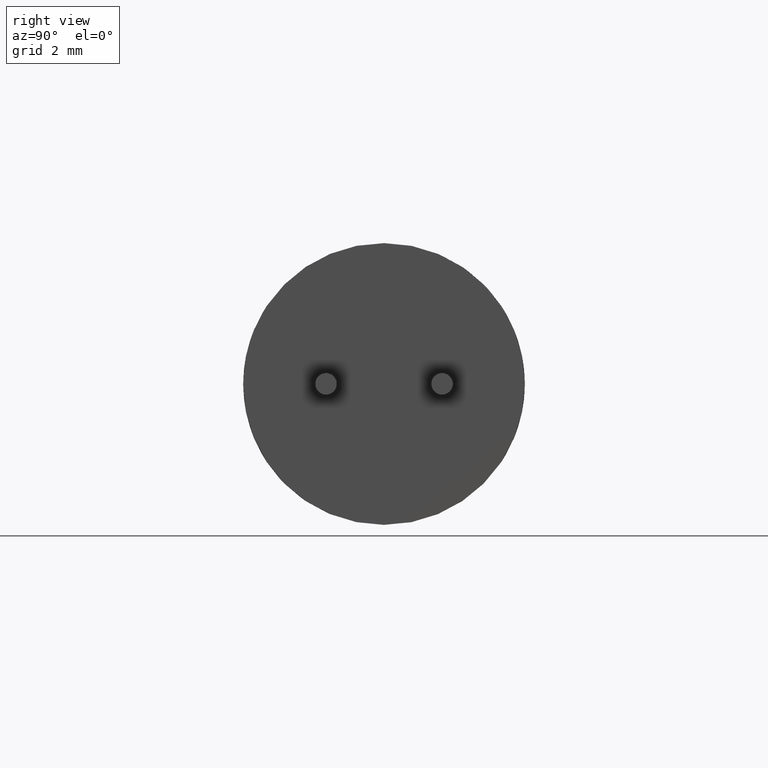
[diagram: clean part render]
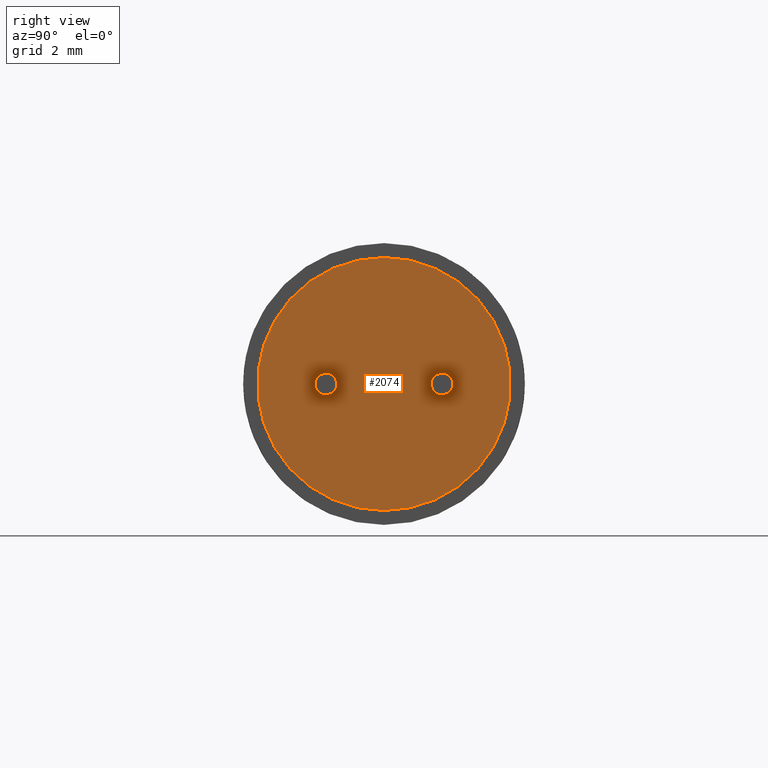
[diagram: same view with one face highlighted and labeled with its STEP entity id]
A machine part, right view. The second image highlights one B-rep face of the part: STEP entity #2074.
In plain terms, the highlighted planar face has unit normal (1, 0, 0).
Its self-contained STEP definition (entity closure, byte-faithful):
#63 = DIRECTION ( 'NONE',  ( 1.000000000000000000, 0.0000000000000000000, 0.0000000000000000000 ) ) ;
#139 = CARTESIAN_POINT ( 'NONE',  ( 13.00000000000000200, 0.0000000000000000000, 0.0000000000000000000 ) ) ;
#160 = CARTESIAN_POINT ( 'NONE',  ( 13.00000000000000200, 1.750000000000000000, 0.3250000000000000100 ) ) ;
#202 = EDGE_CURVE ( 'NONE', #429, #1292, #1528, .T. ) ;
#309 = CIRCLE ( 'NONE', #2842, 0.3250000000000000100 ) ;
#348 = CIRCLE ( 'NONE', #1668, 3.816924999999999900 ) ;
#388 = CARTESIAN_POINT ( 'NONE',  ( 13.00000000000000200, -1.750000000000000000, 0.0000000000000000000 ) ) ;
#429 = VERTEX_POINT ( 'NONE', #2627 ) ;
#486 = AXIS2_PLACEMENT_3D ( 'NONE', #2184, #2507, #2765 ) ;
#488 = FACE_OUTER_BOUND ( 'NONE', #1837, .T. ) ;
#571 = CIRCLE ( 'NONE', #755, 0.3250000000000000100 ) ;
#580 = CARTESIAN_POINT ( 'NONE',  ( 13.00000000000000200, -1.750000000000000000, 0.3250000000000000100 ) ) ;
#602 = ORIENTED_EDGE ( 'NONE', *, *, #1972, .T. ) ;
#609 = CARTESIAN_POINT ( 'NONE',  ( 13.00000000000000200, 1.750000000000000000, 0.0000000000000000000 ) ) ;
#755 = AXIS2_PLACEMENT_3D ( 'NONE', #388, #941, #2547 ) ;
#881 = ORIENTED_EDGE ( 'NONE', *, *, #202, .F. ) ;
#941 = DIRECTION ( 'NONE',  ( 1.000000000000000000, 0.0000000000000000000, 0.0000000000000000000 ) ) ;
#979 = PLANE ( 'NONE',  #1207 ) ;
#1050 = CARTESIAN_POINT ( 'NONE',  ( 13.00000000000000200, 1.750000000000000000, -0.3250000000000000100 ) ) ;
#1073 = VERTEX_POINT ( 'NONE', #3367 ) ;
#1172 = CIRCLE ( 'NONE', #2878, 0.3250000000000000100 ) ;
#1181 = CARTESIAN_POINT ( 'NONE',  ( 13.00000000000000200, 0.0000000000000000000, 3.816924999999999900 ) ) ;
#1188 = DIRECTION ( 'NONE',  ( 0.0000000000000000000, 0.0000000000000000000, -1.000000000000000000 ) ) ;
#1201 = DIRECTION ( 'NONE',  ( 0.0000000000000000000, 0.0000000000000000000, -1.000000000000000000 ) ) ;
#1207 = AXIS2_PLACEMENT_3D ( 'NONE', #139, #3150, #1793 ) ;
#1230 = DIRECTION ( 'NONE',  ( 1.000000000000000000, 0.0000000000000000000, 0.0000000000000000000 ) ) ;
#1292 = VERTEX_POINT ( 'NONE', #580 ) ;
#1330 = EDGE_CURVE ( 'NONE', #1745, #3356, #309, .T. ) ;
#1392 = DIRECTION ( 'NONE',  ( 0.0000000000000000000, 0.0000000000000000000, -1.000000000000000000 ) ) ;
#1510 = CIRCLE ( 'NONE', #2991, 3.816924999999999900 ) ;
#1528 = CIRCLE ( 'NONE', #486, 0.3250000000000000100 ) ;
#1552 = EDGE_LOOP ( 'NONE', ( #2835, #1856 ) ) ;
#1633 = FACE_BOUND ( 'NONE', #2122, .T. ) ;
#1668 = AXIS2_PLACEMENT_3D ( 'NONE', #2725, #2770, #1392 ) ;
#1745 = VERTEX_POINT ( 'NONE', #1050 ) ;
#1793 = DIRECTION ( 'NONE',  ( 0.0000000000000000000, 0.0000000000000000000, -1.000000000000000000 ) ) ;
#1798 = FACE_BOUND ( 'NONE', #1552, .T. ) ;
#1837 = EDGE_LOOP ( 'NONE', ( #602, #2754 ) ) ;
#1856 = ORIENTED_EDGE ( 'NONE', *, *, #1330, .F. ) ;
#1941 = DIRECTION ( 'NONE',  ( 1.000000000000000000, 0.0000000000000000000, 0.0000000000000000000 ) ) ;
#1959 = EDGE_CURVE ( 'NONE', #1073, #2593, #348, .T. ) ;
#1972 = EDGE_CURVE ( 'NONE', #2593, #1073, #1510, .T. ) ;
#2074 = ADVANCED_FACE ( 'NONE', ( #1633, #488, #1798 ), #979, .T. ) ;
#2122 = EDGE_LOOP ( 'NONE', ( #3237, #881 ) ) ;
#2184 = CARTESIAN_POINT ( 'NONE',  ( 13.00000000000000200, -1.750000000000000000, 0.0000000000000000000 ) ) ;
#2349 = EDGE_CURVE ( 'NONE', #1292, #429, #571, .T. ) ;
#2418 = CARTESIAN_POINT ( 'NONE',  ( 13.00000000000000200, 1.750000000000000000, 0.0000000000000000000 ) ) ;
#2471 = EDGE_CURVE ( 'NONE', #3356, #1745, #1172, .T. ) ;
#2507 = DIRECTION ( 'NONE',  ( 1.000000000000000000, 0.0000000000000000000, 0.0000000000000000000 ) ) ;
#2524 = CARTESIAN_POINT ( 'NONE',  ( 13.00000000000000200, 0.0000000000000000000, 0.0000000000000000000 ) ) ;
#2547 = DIRECTION ( 'NONE',  ( 0.0000000000000000000, 0.0000000000000000000, -1.000000000000000000 ) ) ;
#2593 = VERTEX_POINT ( 'NONE', #1181 ) ;
#2627 = CARTESIAN_POINT ( 'NONE',  ( 13.00000000000000200, -1.750000000000000000, -0.3250000000000000100 ) ) ;
#2725 = CARTESIAN_POINT ( 'NONE',  ( 13.00000000000000200, 0.0000000000000000000, 0.0000000000000000000 ) ) ;
#2754 = ORIENTED_EDGE ( 'NONE', *, *, #1959, .T. ) ;
#2765 = DIRECTION ( 'NONE',  ( 0.0000000000000000000, 0.0000000000000000000, -1.000000000000000000 ) ) ;
#2770 = DIRECTION ( 'NONE',  ( 1.000000000000000000, 0.0000000000000000000, 0.0000000000000000000 ) ) ;
#2835 = ORIENTED_EDGE ( 'NONE', *, *, #2471, .F. ) ;
#2842 = AXIS2_PLACEMENT_3D ( 'NONE', #609, #63, #1188 ) ;
#2878 = AXIS2_PLACEMENT_3D ( 'NONE', #2418, #1941, #3347 ) ;
#2991 = AXIS2_PLACEMENT_3D ( 'NONE', #2524, #1230, #1201 ) ;
#3150 = DIRECTION ( 'NONE',  ( 1.000000000000000000, 0.0000000000000000000, 0.0000000000000000000 ) ) ;
#3237 = ORIENTED_EDGE ( 'NONE', *, *, #2349, .F. ) ;
#3347 = DIRECTION ( 'NONE',  ( 0.0000000000000000000, 0.0000000000000000000, -1.000000000000000000 ) ) ;
#3356 = VERTEX_POINT ( 'NONE', #160 ) ;
#3367 = CARTESIAN_POINT ( 'NONE',  ( 13.00000000000000200, 4.674384983835510700E-016, -3.816924999999999900 ) ) ;